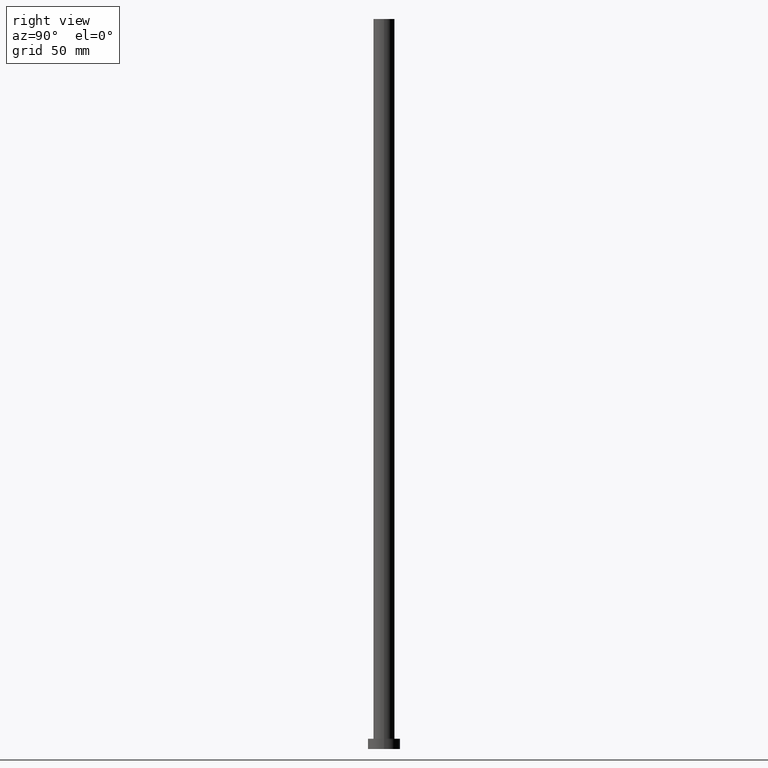
[diagram: clean part render]
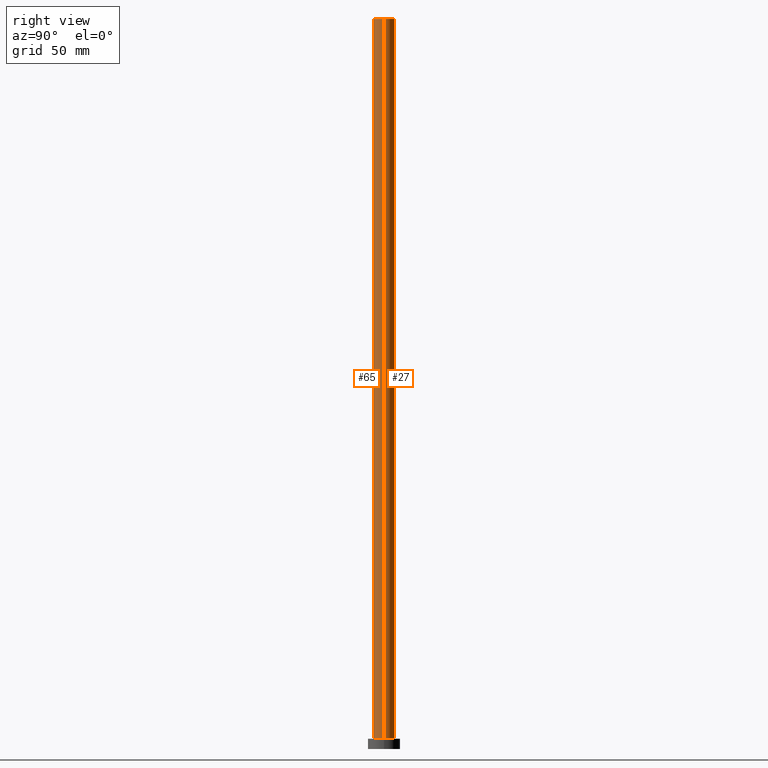
[diagram: same view with one multi-face feature highlighted, each face labeled with its STEP entity id]
A machine part, right view. The highlighted faces form ONE feature: a constant-radius fillet chain: 2 tangent blend faces with common blend radius 7.25 mm. The faces share edges in the B-rep.
Their STEP definitions:
[1] entity #27 (Cylinder):
#12 = CIRCLE ( 'NONE', #245, 7.250000000000000000 ) ;
#13 = LINE ( 'NONE', #53, #243 ) ;
#14 = CARTESIAN_POINT ( 'NONE',  ( 7.250000000000000000, 8.878689293818310074E-16, 500.0000000000000000 ) ) ;
#25 = VERTEX_POINT ( 'NONE', #14 ) ;
#27 = ADVANCED_FACE ( 'NONE', ( #175 ), #112, .T. ) ;
#31 = EDGE_CURVE ( 'NONE', #82, #54, #12, .T. ) ;
#32 = AXIS2_PLACEMENT_3D ( 'NONE', #125, #34, #64 ) ;
#34 = DIRECTION ( 'NONE',  ( 0.000000000000000000, 0.000000000000000000, 1.000000000000000000 ) ) ;
#35 = CARTESIAN_POINT ( 'NONE',  ( 7.250000000000000000, 8.878689293818310074E-16, 500.0000000000000000 ) ) ;
#36 = CARTESIAN_POINT ( 'NONE',  ( 7.250000000000000000, 8.878689293818310074E-16, 7.000000000000000000 ) ) ;
#37 = DIRECTION ( 'NONE',  ( 0.000000000000000000, 0.000000000000000000, 1.000000000000000000 ) ) ;
#53 = CARTESIAN_POINT ( 'NONE',  ( -7.250000000000000000, 0.000000000000000000, 500.0000000000000000 ) ) ;
#54 = VERTEX_POINT ( 'NONE', #236 ) ;
#60 = AXIS2_PLACEMENT_3D ( 'NONE', #92, #134, #68 ) ;
#62 = EDGE_CURVE ( 'NONE', #25, #82, #198, .T. ) ;
#63 = VECTOR ( 'NONE', #180, 1000.000000000000000 ) ;
#64 = DIRECTION ( 'NONE',  ( 1.000000000000000000, 0.000000000000000000, 0.000000000000000000 ) ) ;
#68 = DIRECTION ( 'NONE',  ( -1.000000000000000000, 0.000000000000000000, 0.000000000000000000 ) ) ;
#82 = VERTEX_POINT ( 'NONE', #36 ) ;
#89 = DIRECTION ( 'NONE',  ( -0.000000000000000000, -0.000000000000000000, -1.000000000000000000 ) ) ;
#92 = CARTESIAN_POINT ( 'NONE',  ( 0.000000000000000000, 0.000000000000000000, 500.0000000000000000 ) ) ;
#103 = EDGE_LOOP ( 'NONE', ( #210, #123, #212, #115 ) ) ;
#112 = CYLINDRICAL_SURFACE ( 'NONE', #60, 7.250000000000000000 ) ;
#115 = ORIENTED_EDGE ( 'NONE', *, *, #254, .F. ) ;
#123 = ORIENTED_EDGE ( 'NONE', *, *, #62, .T. ) ;
#125 = CARTESIAN_POINT ( 'NONE',  ( 0.000000000000000000, 0.000000000000000000, 500.0000000000000000 ) ) ;
#134 = DIRECTION ( 'NONE',  ( -0.000000000000000000, -0.000000000000000000, -1.000000000000000000 ) ) ;
#142 = CIRCLE ( 'NONE', #32, 7.250000000000000000 ) ;
#156 = DIRECTION ( 'NONE',  ( 1.000000000000000000, 0.000000000000000000, 0.000000000000000000 ) ) ;
#175 = FACE_OUTER_BOUND ( 'NONE', #103, .T. ) ;
#180 = DIRECTION ( 'NONE',  ( -0.000000000000000000, -0.000000000000000000, -1.000000000000000000 ) ) ;
#181 = CARTESIAN_POINT ( 'NONE',  ( 0.000000000000000000, 0.000000000000000000, 7.000000000000000000 ) ) ;
#184 = VERTEX_POINT ( 'NONE', #207 ) ;
#198 = LINE ( 'NONE', #35, #63 ) ;
#207 = CARTESIAN_POINT ( 'NONE',  ( -7.250000000000000000, 0.000000000000000000, 500.0000000000000000 ) ) ;
#210 = ORIENTED_EDGE ( 'NONE', *, *, #224, .F. ) ;
#212 = ORIENTED_EDGE ( 'NONE', *, *, #31, .T. ) ;
#224 = EDGE_CURVE ( 'NONE', #25, #184, #142, .T. ) ;
#236 = CARTESIAN_POINT ( 'NONE',  ( -7.250000000000000000, 0.000000000000000000, 7.000000000000000000 ) ) ;
#243 = VECTOR ( 'NONE', #89, 1000.000000000000000 ) ;
#245 = AXIS2_PLACEMENT_3D ( 'NONE', #181, #37, #156 ) ;
#254 = EDGE_CURVE ( 'NONE', #184, #54, #13, .T. ) ;
[2] entity #65 (Cylinder):
#13 = LINE ( 'NONE', #53, #243 ) ;
#14 = CARTESIAN_POINT ( 'NONE',  ( 7.250000000000000000, 8.878689293818310074E-16, 500.0000000000000000 ) ) ;
#17 = CARTESIAN_POINT ( 'NONE',  ( 0.000000000000000000, 0.000000000000000000, 500.0000000000000000 ) ) ;
#18 = AXIS2_PLACEMENT_3D ( 'NONE', #17, #51, #237 ) ;
#25 = VERTEX_POINT ( 'NONE', #14 ) ;
#26 = ORIENTED_EDGE ( 'NONE', *, *, #195, .T. ) ;
#28 = ORIENTED_EDGE ( 'NONE', *, *, #254, .T. ) ;
#33 = EDGE_LOOP ( 'NONE', ( #149, #49, #28, #26 ) ) ;
#35 = CARTESIAN_POINT ( 'NONE',  ( 7.250000000000000000, 8.878689293818310074E-16, 500.0000000000000000 ) ) ;
#36 = CARTESIAN_POINT ( 'NONE',  ( 7.250000000000000000, 8.878689293818310074E-16, 7.000000000000000000 ) ) ;
#49 = ORIENTED_EDGE ( 'NONE', *, *, #244, .F. ) ;
#50 = DIRECTION ( 'NONE',  ( 0.000000000000000000, 0.000000000000000000, 1.000000000000000000 ) ) ;
#51 = DIRECTION ( 'NONE',  ( -0.000000000000000000, -0.000000000000000000, -1.000000000000000000 ) ) ;
#53 = CARTESIAN_POINT ( 'NONE',  ( -7.250000000000000000, 0.000000000000000000, 500.0000000000000000 ) ) ;
#54 = VERTEX_POINT ( 'NONE', #236 ) ;
#62 = EDGE_CURVE ( 'NONE', #25, #82, #198, .T. ) ;
#63 = VECTOR ( 'NONE', #180, 1000.000000000000000 ) ;
#65 = ADVANCED_FACE ( 'NONE', ( #178 ), #157, .T. ) ;
#82 = VERTEX_POINT ( 'NONE', #36 ) ;
#84 = DIRECTION ( 'NONE',  ( 1.000000000000000000, 0.000000000000000000, 0.000000000000000000 ) ) ;
#89 = DIRECTION ( 'NONE',  ( -0.000000000000000000, -0.000000000000000000, -1.000000000000000000 ) ) ;
#109 = DIRECTION ( 'NONE',  ( 1.000000000000000000, 0.000000000000000000, 0.000000000000000000 ) ) ;
#130 = DIRECTION ( 'NONE',  ( 0.000000000000000000, 0.000000000000000000, 1.000000000000000000 ) ) ;
#149 = ORIENTED_EDGE ( 'NONE', *, *, #62, .F. ) ;
#151 = CARTESIAN_POINT ( 'NONE',  ( 0.000000000000000000, 0.000000000000000000, 500.0000000000000000 ) ) ;
#157 = CYLINDRICAL_SURFACE ( 'NONE', #18, 7.250000000000000000 ) ;
#176 = AXIS2_PLACEMENT_3D ( 'NONE', #213, #50, #109 ) ;
#178 = FACE_OUTER_BOUND ( 'NONE', #33, .T. ) ;
#180 = DIRECTION ( 'NONE',  ( -0.000000000000000000, -0.000000000000000000, -1.000000000000000000 ) ) ;
#184 = VERTEX_POINT ( 'NONE', #207 ) ;
#191 = CIRCLE ( 'NONE', #176, 7.250000000000000000 ) ;
#195 = EDGE_CURVE ( 'NONE', #54, #82, #191, .T. ) ;
#198 = LINE ( 'NONE', #35, #63 ) ;
#207 = CARTESIAN_POINT ( 'NONE',  ( -7.250000000000000000, 0.000000000000000000, 500.0000000000000000 ) ) ;
#213 = CARTESIAN_POINT ( 'NONE',  ( 0.000000000000000000, 0.000000000000000000, 7.000000000000000000 ) ) ;
#230 = CIRCLE ( 'NONE', #239, 7.250000000000000000 ) ;
#236 = CARTESIAN_POINT ( 'NONE',  ( -7.250000000000000000, 0.000000000000000000, 7.000000000000000000 ) ) ;
#237 = DIRECTION ( 'NONE',  ( -1.000000000000000000, 0.000000000000000000, 0.000000000000000000 ) ) ;
#239 = AXIS2_PLACEMENT_3D ( 'NONE', #151, #130, #84 ) ;
#243 = VECTOR ( 'NONE', #89, 1000.000000000000000 ) ;
#244 = EDGE_CURVE ( 'NONE', #184, #25, #230, .T. ) ;
#254 = EDGE_CURVE ( 'NONE', #184, #54, #13, .T. ) ;